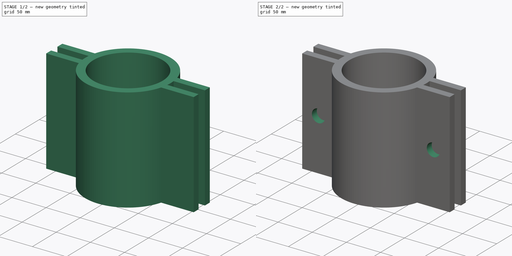
[diagram: build sequence overview — one tinted view per stage of 2, left to right]
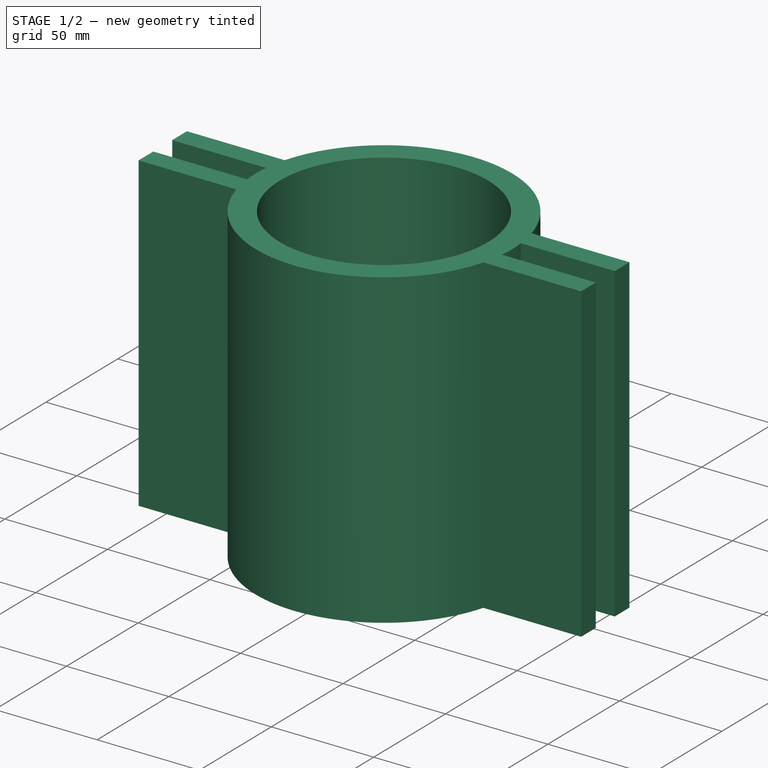
[diagram: stage 1 of 2 — iso view after this stage's code; geometry added in this stage tinted green]
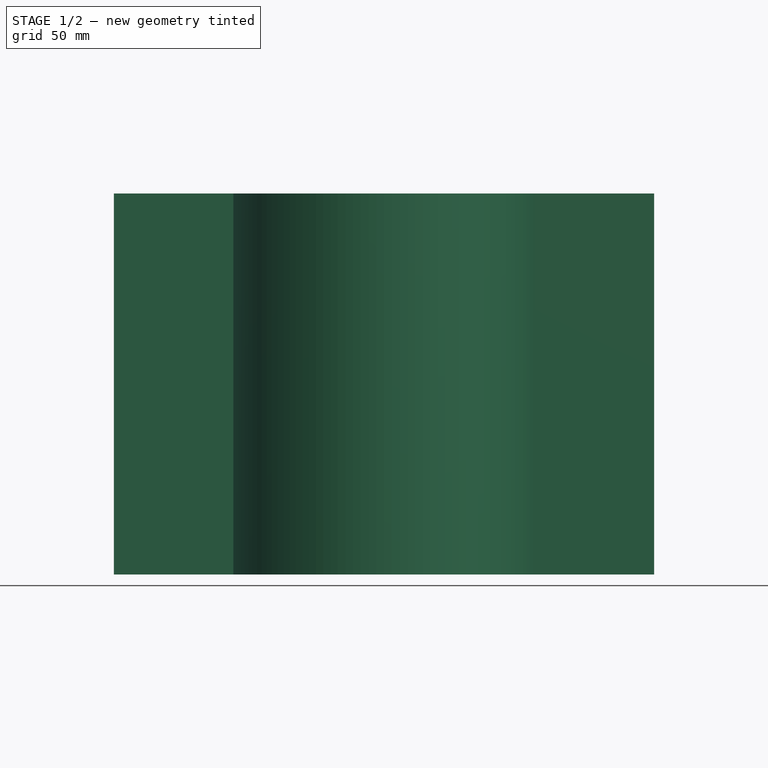
[diagram: stage 1 of 2 — front view after this stage's code; geometry added in this stage tinted green]
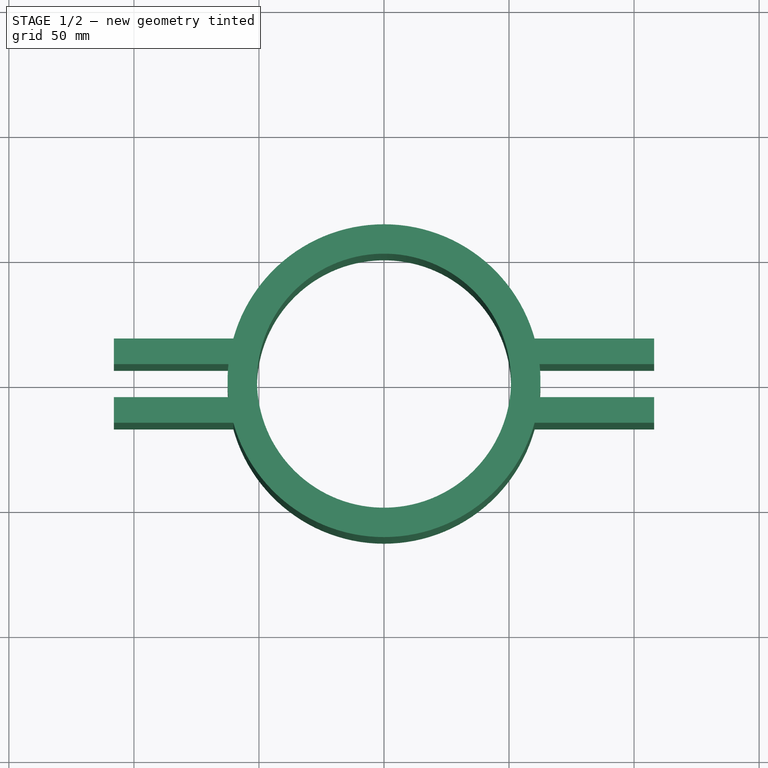
[diagram: stage 1 of 2 — top view after this stage's code; geometry added in this stage tinted green]
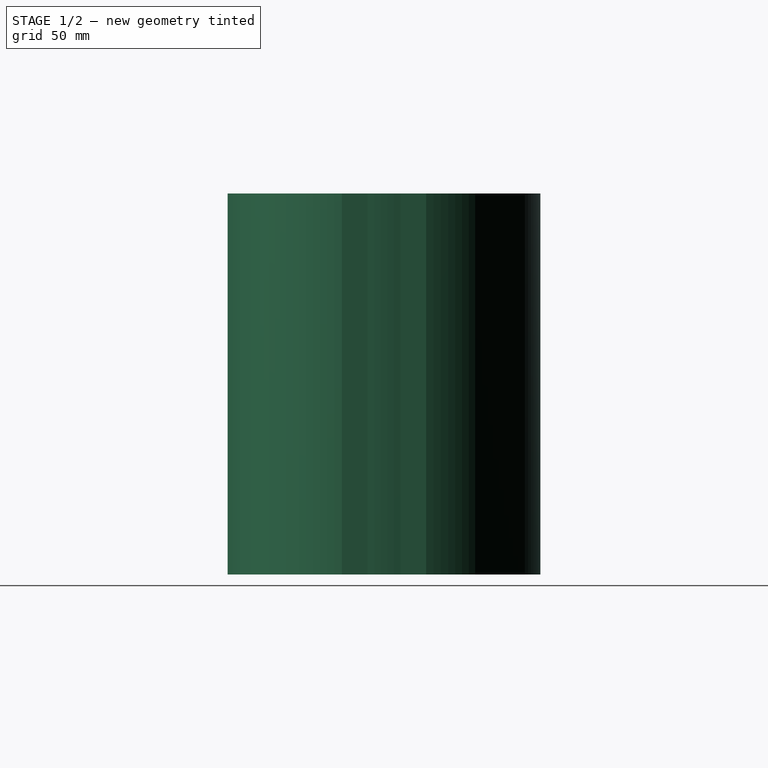
[diagram: stage 1 of 2 — right view after this stage's code; geometry added in this stage tinted green]
FCSTD DOCUMENT  (FreeCAD 0.16R6712 (Git))
Label: Idler Bolt Clamp
License: All rights reserved
LicenseURL: http://en.wikipedia.org/wiki/All_rights_reserved
objects: Sketcher::SketchObject×2, PartDesign::Pad×1, PartDesign::Pocket×1
note: 6 computed .brp shape members not serialized (recipe doc carries the construction recipe); baked Part::Feature solids carry a one-line shape summary decoded from their .brp

FEATURE [Sketcher::SketchObject] Sketch
  Placement = pos=(0,0,-76.2) rot=(1,0,0;3.14159rad)
  sketch-geometry (17):
    g0: Circle CenterX=0 CenterY=0 CenterZ=0 NormalX=0 NormalY=0 NormalZ=1 Radius=50.8
    g1: ArcOfCircle CenterX=0 CenterY=0 CenterZ=0 NormalX=0 NormalY=0 NormalZ=1 Radius=62.5546 StartAngle=6.17749 EndAngle=6.38888
    g2: LineSegment StartX=-62.2055 StartY=6.5996 StartZ=0 EndX=-108.014 EndY=6.5996 EndZ=0
    g3: LineSegment StartX=-108.014 StartY=6.5996 StartZ=0 EndX=-108.014 EndY=16.8465 EndZ=0
    g4: LineSegment StartX=-108.014 StartY=16.8465 StartZ=0 EndX=-60.2435 EndY=16.8465 EndZ=0
    g5: LineSegment StartX=-62.2055 StartY=-6.5996 StartZ=0 EndX=-108.014 EndY=-6.5996 EndZ=0
    g6: LineSegment StartX=-108.014 StartY=-6.5996 StartZ=0 EndX=-108.014 EndY=-16.8465 EndZ=0
    g7: LineSegment StartX=-108.014 StartY=-16.8465 StartZ=0 EndX=-60.2435 EndY=-16.8465 EndZ=0
    g8: LineSegment StartX=62.2055 StartY=6.5996 StartZ=0 EndX=108.014 EndY=6.5996 EndZ=0
    g9: LineSegment StartX=108.014 StartY=6.5996 StartZ=0 EndX=108.014 EndY=16.8465 EndZ=0
    g10: LineSegment StartX=108.014 StartY=16.8465 StartZ=0 EndX=60.2435 EndY=16.8465 EndZ=0
    g11: LineSegment StartX=62.2055 StartY=-6.5996 StartZ=0 EndX=108.014 EndY=-6.5996 EndZ=0
    g12: LineSegment StartX=108.014 StartY=-6.5996 StartZ=0 EndX=108.014 EndY=-16.8465 EndZ=0
    g13: LineSegment StartX=108.014 StartY=-16.8465 StartZ=0 EndX=60.2435 EndY=-16.8465 EndZ=0
    g14: ArcOfCircle CenterX=0 CenterY=0 CenterZ=0 NormalX=0 NormalY=0 NormalZ=1 Radius=62.5546 StartAngle=3.03589 EndAngle=3.24729
    g15: ArcOfCircle CenterX=0 CenterY=0 CenterZ=0 NormalX=0 NormalY=0 NormalZ=1 Radius=62.5546 StartAngle=0.272676 EndAngle=2.86892
    g16: ArcOfCircle CenterX=0 CenterY=0 CenterZ=0 NormalX=0 NormalY=0 NormalZ=1 Radius=62.5546 StartAngle=3.41427 EndAngle=6.01051
  constraints (60):
    c: Coincident(g0,g-1)
    c: Radius(g0) = 50.8
    c: Coincident(g1,g-1)
    c: Horizontal(g2)
    c: Coincident(g3,g2)
    c: Coincident(g4,g3)
    c: Horizontal(g4)
    c: Horizontal(g5)
    c: Coincident(g6,g5)
    c: Vertical(g6)
    c: Coincident(g7,g6)
    c: PointOnObject(g7,g1)
    c: Horizontal(g7)
    c: Equal(g6,g3)
    c: Symmetric(g6,g3,g-1)
    c: DistanceX(g7,g7) = 47.7703
    c: DistanceY(g3,g3) = 10.2469
    c: Equal(g7,g4)
    c: Equal(g2,g5)
    c: Horizontal(g8)
    c: Coincident(g9,g8)
    c: Vertical(g9)
    c: Coincident(g10,g9)
    c: PointOnObject(g10,g1)
    c: Horizontal(g10)
    c: Horizontal(g11)
    c: Coincident(g12,g11)
    c: Vertical(g12)
    c: Coincident(g13,g12)
    c: PointOnObject(g13,g1)
    c: Horizontal(g13)
    c: Equal(g12,g9)
    c: Equal(g9,g3)
    c: Equal(g10,g13)
    c: Equal(g13,g7)
    c: Equal(g8,g11)
    c: Equal(g11,g2)
    c: Symmetric(g3,g9,g-2)
    c: Symmetric(g9,g12,g-1)
    c: Coincident(g1,g11)
    c: Coincident(g14,g5)
    c: Coincident(g1,g8)
    c: Coincident(g14,g2)
    c: Coincident(g1,g14)
    c: Coincident(g15,g-1)
    c: Coincident(g15,g4)
    c: Coincident(g15,g10)
    c: Coincident(g16,g-1)
    c: Coincident(g16,g7)
    c: Coincident(g16,g13)
    c: Radius(g16) = 62.5546
    c: Equal(g16,g14)
    c: Equal(g16,g15)
    c: Symmetric(g4,g7,g-1)
    c: Symmetric(g1,g2,g-2)
    c: Symmetric(g10,g4,g-2)
    c: Symmetric(g1,g5,g-2)
    c: Symmetric(g7,g13,g-2)
    c: Symmetric(g10,g13,g-1)
    c: DistanceX(g10) = 60.2435
FEATURE [PartDesign::Pad] Pad
  Length = 152.4
  Length2 = 100
  Placement = pos=(0,0,-76.2) rot=(1,0,0;3.14159rad)
  Sketch = -> Sketch
  Type = 0
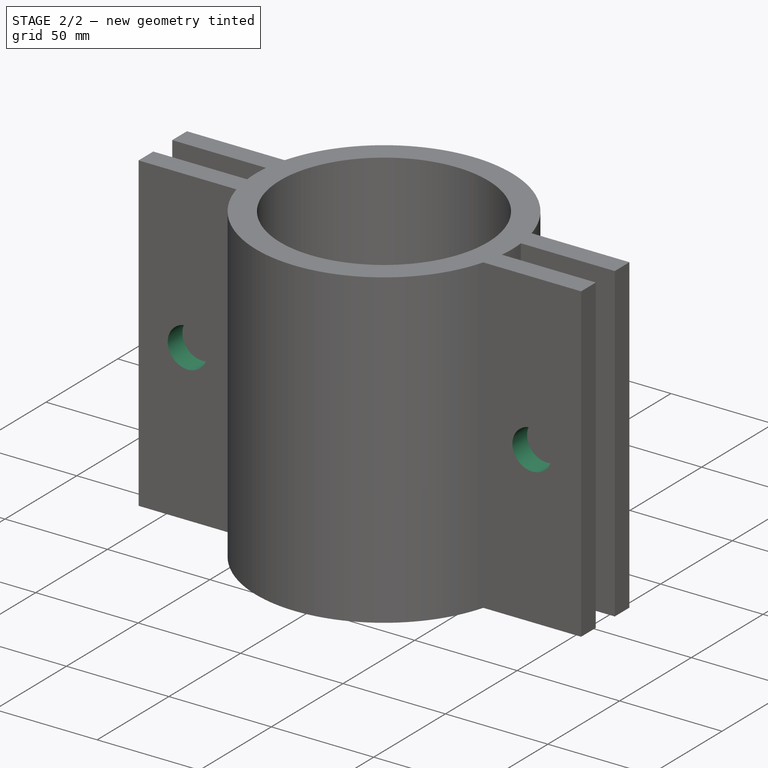
[diagram: stage 2 of 2 — iso view after this stage's code; geometry added in this stage tinted green]
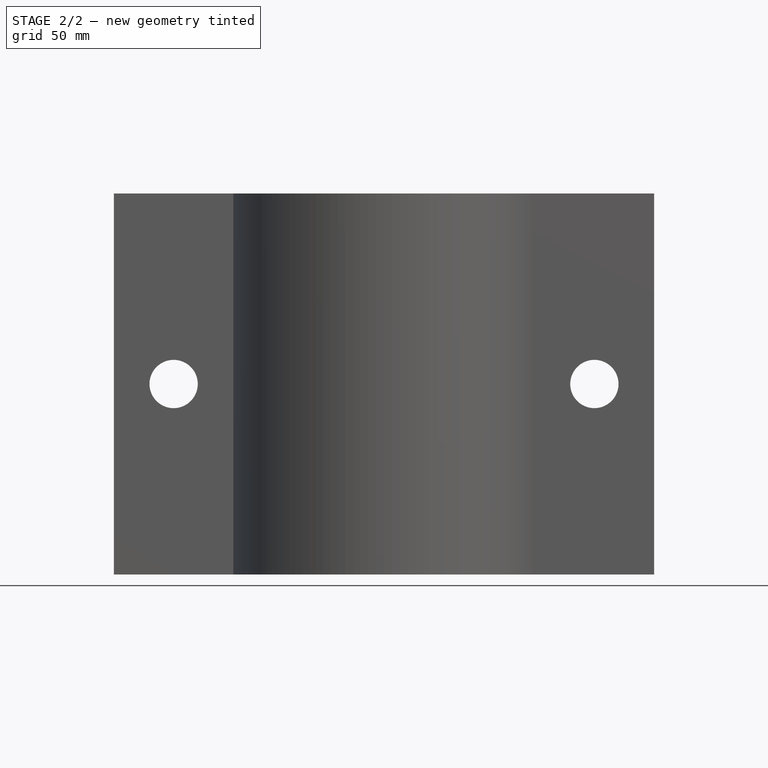
[diagram: stage 2 of 2 — front view after this stage's code; geometry added in this stage tinted green]
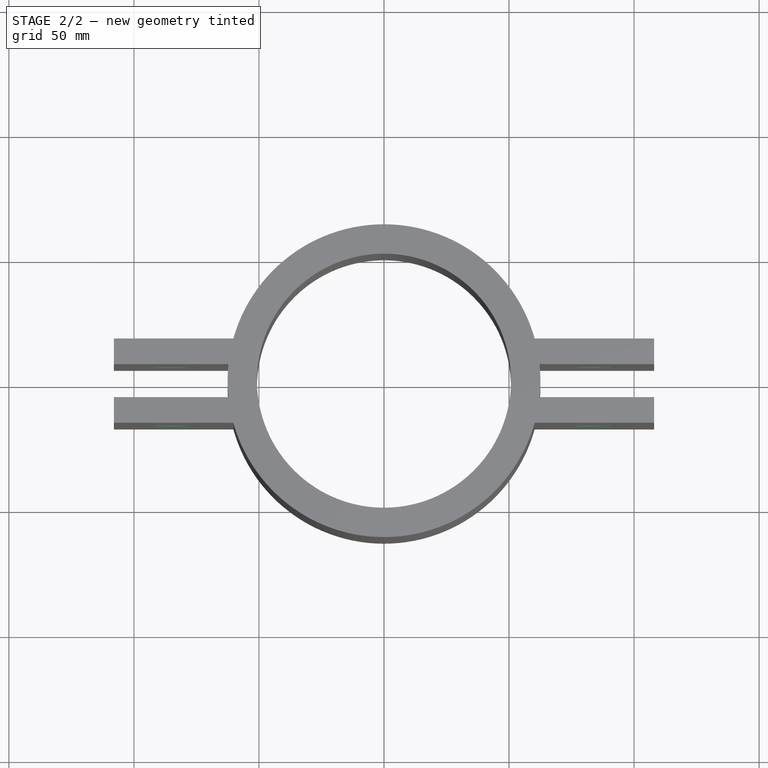
[diagram: stage 2 of 2 — top view after this stage's code; geometry added in this stage tinted green]
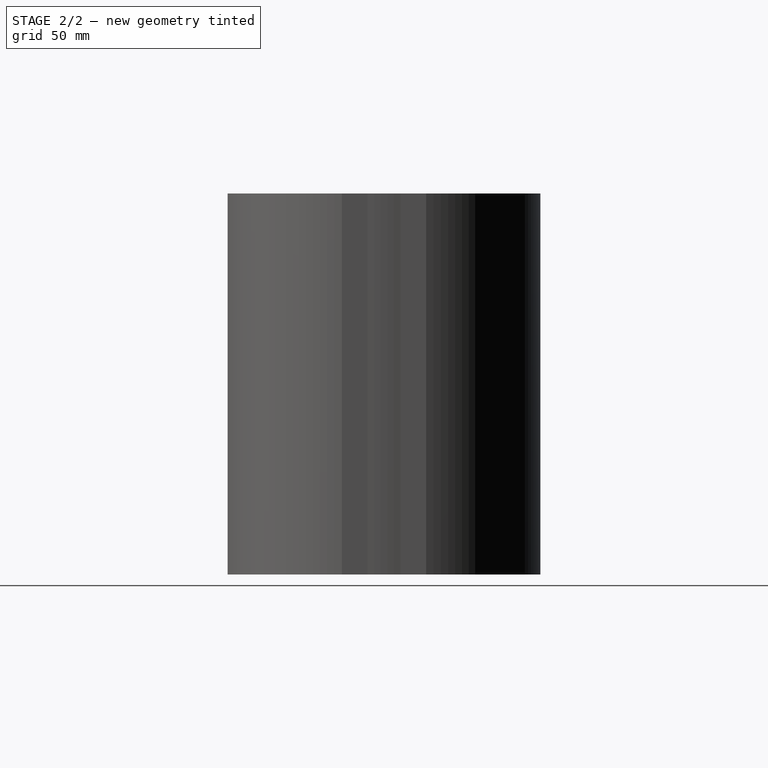
[diagram: stage 2 of 2 — right view after this stage's code; geometry added in this stage tinted green]
FEATURE [Sketcher::SketchObject] Sketch001
  ExternalGeometry = -> [Pad]
  Placement = pos=(0,-16.8465,-76.2) rot=(0,0.707107,-0.707107;3.14159rad)
  Support = -> Pad [Face6]
  sketch-geometry (16):
    g0: LineSegment [constr] StartX=-84.1286 StartY=152.4 StartZ=0 EndX=-84.1286 EndY=0 EndZ=0
    g1: LineSegment [constr] StartX=-108.014 StartY=76.2 StartZ=0 EndX=-60.2435 EndY=76.2 EndZ=0
    g2: LineSegment [constr] StartX=-108.014 StartY=114.3 StartZ=0 EndX=-60.2435 EndY=114.3 EndZ=0
    g3: LineSegment [constr] StartX=-108.014 StartY=38.1 StartZ=0 EndX=-60.2435 EndY=38.1 EndZ=0
    g4: LineSegment [constr] StartX=84.1286 StartY=152.4 StartZ=0 EndX=84.1286 EndY=0 EndZ=0
    g5: LineSegment [constr] StartX=60.2435 StartY=114.3 StartZ=0 EndX=108.014 EndY=114.3 EndZ=0
    g6: LineSegment [constr] StartX=60.2435 StartY=76.2 StartZ=0 EndX=108.014 EndY=76.2 EndZ=0
    g7: LineSegment [constr] StartX=60.2435 StartY=38.1 StartZ=0 EndX=108.014 EndY=38.1 EndZ=0
    g8: GeomPoint [constr] X=-84.1286 Y=114.3 Z=0
    g9: GeomPoint [constr] X=-84.1286 Y=76.2 Z=0
    g10: GeomPoint [constr] X=-84.1286 Y=38.1 Z=0
    g11: GeomPoint [constr] X=84.1286 Y=114.3 Z=0
    g12: GeomPoint [constr] X=84.1286 Y=76.2 Z=0
    g13: GeomPoint [constr] X=84.1286 Y=38.1 Z=0
    g14: Circle CenterX=-84.1286 CenterY=76.2 CenterZ=0 NormalX=0 NormalY=0 NormalZ=1 Radius=9.652
    g15: Circle CenterX=84.1286 CenterY=76.2 CenterZ=0 NormalX=0 NormalY=0 NormalZ=1 Radius=9.652
  constraints (46):
    c: PointOnObject(g0,g-5)
    c: PointOnObject(g0,g-3)
    c: Vertical(g0)
    c: PointOnObject(g1,g-6)
    c: Horizontal(g1)
    c: Symmetric(g-5,g-6,g0)
    c: Symmetric(g-5,g-4,g1)
    c: PointOnObject(g2,g-4)
    c: PointOnObject(g2,g-6)
    c: Horizontal(g2)
    c: PointOnObject(g3,g-4)
    c: PointOnObject(g3,g-6)
    c: Horizontal(g3)
    c: Symmetric(g1,g-5,g2)
    c: Symmetric(g-4,g1,g3)
    c: Vertical(g4)
    c: Horizontal(g6)
    c: Horizontal(g5)
    c: Horizontal(g7)
    c: PointOnObject(g7,g-7)
    c: PointOnObject(g4,g-8)
    c: PointOnObject(g4,g-10)
    c: PointOnObject(g5,g-9)
    c: PointOnObject(g5,g-7)
    c: PointOnObject(g6,g-7)
    c: PointOnObject(g7,g-9)
    c: Symmetric(g-10,g-9,g6)
    c: Symmetric(g-9,g6,g5)
    c: Symmetric(g-10,g6,g7)
    c: Symmetric(g-8,g-9,g4)
    c: PointOnObject(g8,g2)
    c: PointOnObject(g8,g0)
    c: PointOnObject(g9,g0)
    c: PointOnObject(g9,g1)
    c: PointOnObject(g10,g0)
    c: PointOnObject(g10,g3)
    c: PointOnObject(g11,g4)
    c: PointOnObject(g11,g5)
    c: PointOnObject(g12,g4)
    c: PointOnObject(g12,g6)
    c: PointOnObject(g13,g4)
    c: PointOnObject(g13,g7)
    c: Coincident(g14,g9)
    c: Coincident(g15,g12)
    c: Equal(g14,g15)
    c: Radius(g14) = 9.652
FEATURE [PartDesign::Pocket] Pocket
  Length = 4.99999
  Placement = pos=(0,0,-76.2) rot=(1,0,0;3.14159rad)
  Sketch = -> Sketch001
  Type = 1
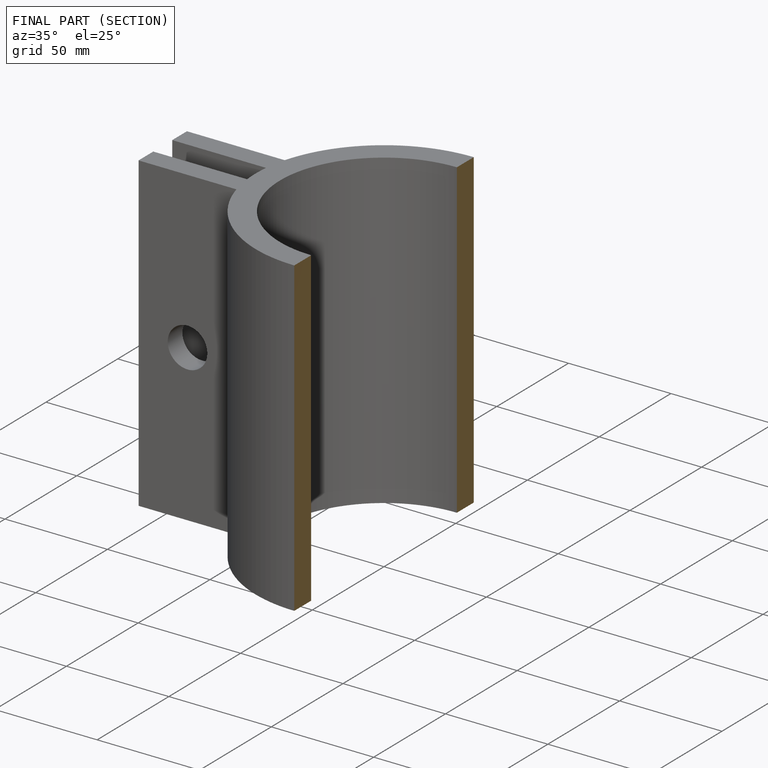
[diagram: finished part — half-section view (interior)]
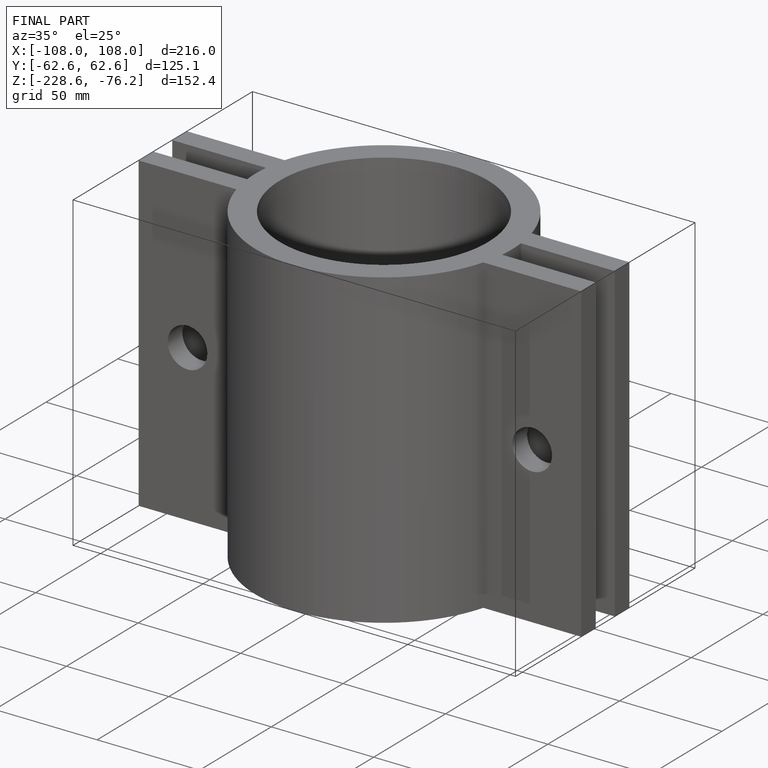
[diagram: finished part — iso view with bounding-box wireframe]
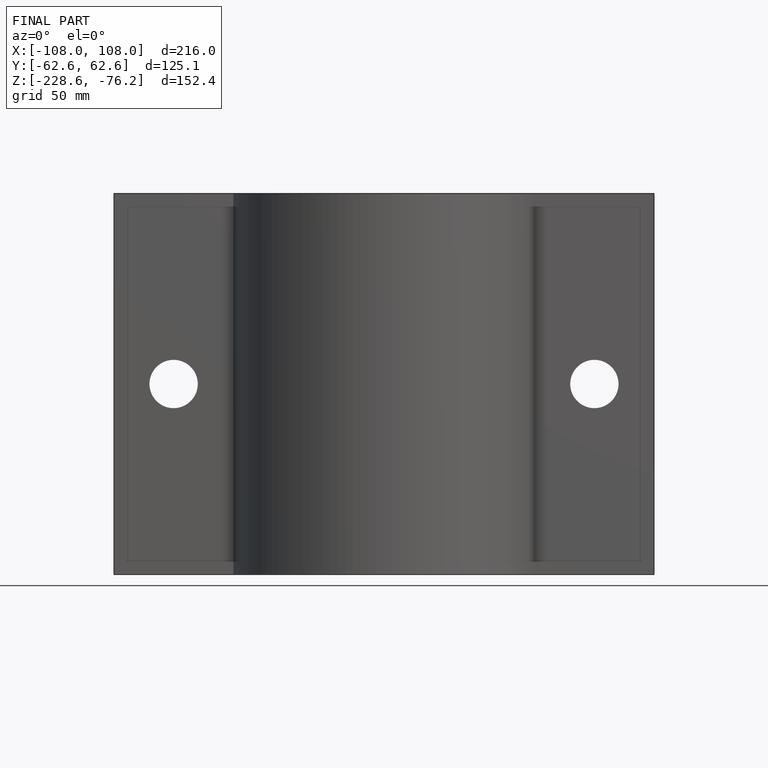
[diagram: finished part — front view with bounding-box wireframe]
